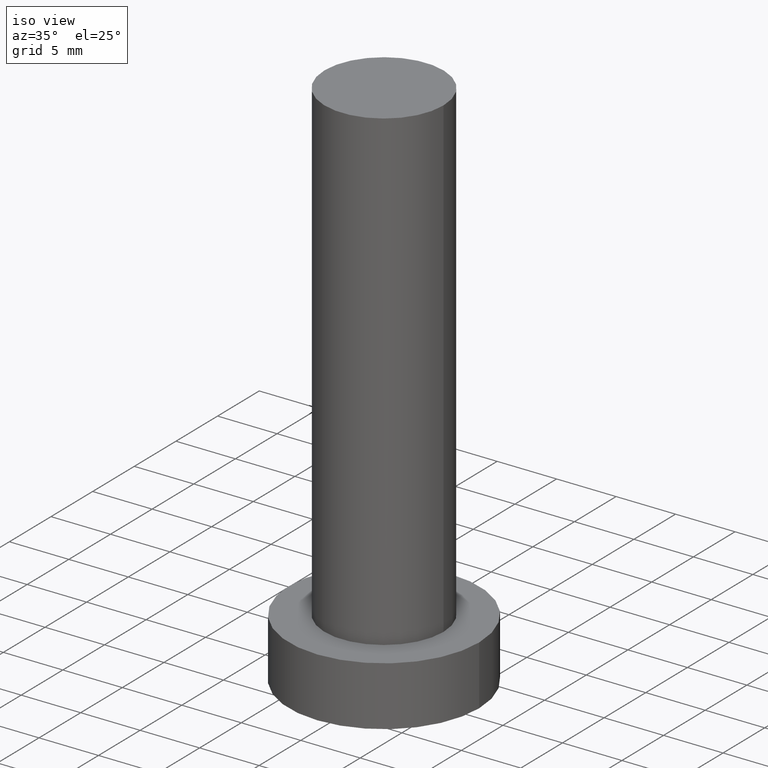
[diagram: clean part render]
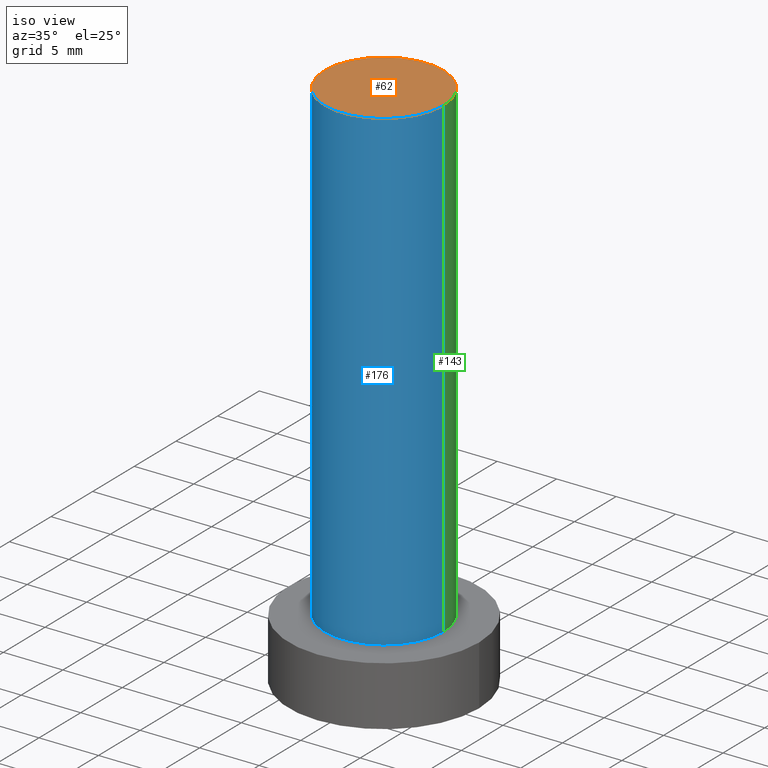
[diagram: same view with three faces highlighted in distinct colors, each labeled with its STEP entity id]
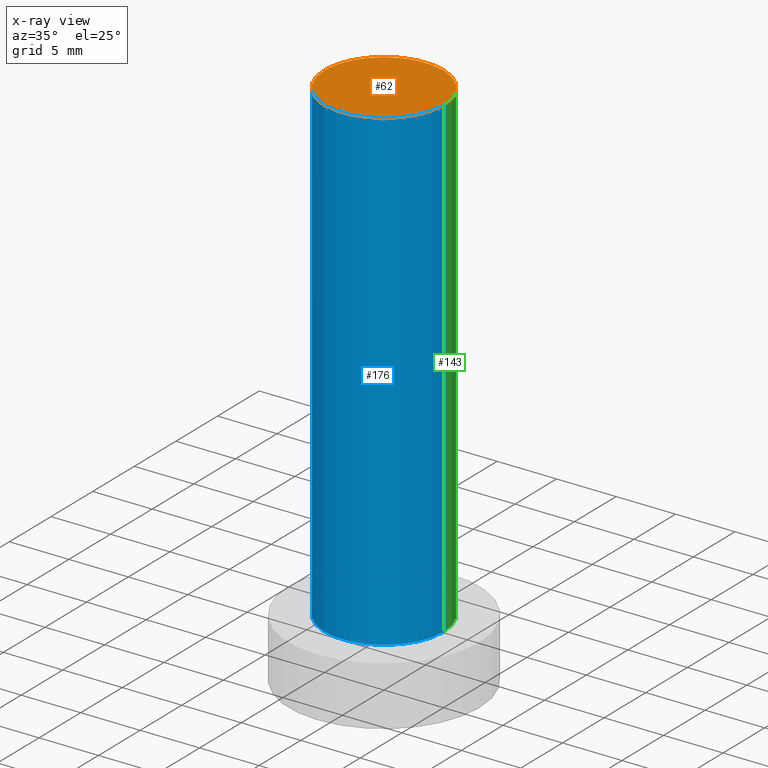
[diagram: x-ray of the same camera — body ghosted, the three highlighted faces saturated]
A machine part, iso view with three faces highlighted in distinct colors.
The next image is the same camera in x-ray (body ghosted, the three faces saturated) — at least one of them is partly hidden behind the body in this view.
Their STEP definitions:

[orange] entity #62 — the highlighted planar face has unit normal (0, 0, 1).
#12 = EDGE_LOOP ( 'NONE', ( #165, #240 ) ) ;
#18 = CARTESIAN_POINT ( 'NONE',  ( 0.000000000000000000, 0.000000000000000000, 45.00000000000000000 ) ) ;
#36 = FACE_OUTER_BOUND ( 'NONE', #12, .T. ) ;
#48 = CARTESIAN_POINT ( 'NONE',  ( -5.000000000000000888, 0.000000000000000000, 45.00000000000000000 ) ) ;
#57 = EDGE_CURVE ( 'NONE', #91, #68, #113, .T. ) ;
#62 = ADVANCED_FACE ( 'NONE', ( #36 ), #210, .T. ) ;
#68 = VERTEX_POINT ( 'NONE', #160 ) ;
#79 = DIRECTION ( 'NONE',  ( 1.000000000000000000, 0.000000000000000000, -0.000000000000000000 ) ) ;
#91 = VERTEX_POINT ( 'NONE', #48 ) ;
#113 = CIRCLE ( 'NONE', #122, 5.000000000000000888 ) ;
#119 = EDGE_CURVE ( 'NONE', #68, #91, #174, .T. ) ;
#122 = AXIS2_PLACEMENT_3D ( 'NONE', #151, #228, #226 ) ;
#151 = CARTESIAN_POINT ( 'NONE',  ( 0.000000000000000000, 0.000000000000000000, 45.00000000000000000 ) ) ;
#153 = AXIS2_PLACEMENT_3D ( 'NONE', #18, #247, #79 ) ;
#160 = CARTESIAN_POINT ( 'NONE',  ( 5.000000000000000888, 6.123233995736767268E-16, 45.00000000000000000 ) ) ;
#165 = ORIENTED_EDGE ( 'NONE', *, *, #57, .T. ) ;
#174 = CIRCLE ( 'NONE', #204, 5.000000000000000888 ) ;
#183 = DIRECTION ( 'NONE',  ( 1.000000000000000000, 0.000000000000000000, 0.000000000000000000 ) ) ;
#201 = CARTESIAN_POINT ( 'NONE',  ( 0.000000000000000000, 0.000000000000000000, 45.00000000000000000 ) ) ;
#204 = AXIS2_PLACEMENT_3D ( 'NONE', #201, #246, #183 ) ;
#210 = PLANE ( 'NONE',  #153 ) ;
#226 = DIRECTION ( 'NONE',  ( 1.000000000000000000, 0.000000000000000000, 0.000000000000000000 ) ) ;
#228 = DIRECTION ( 'NONE',  ( 0.000000000000000000, 0.000000000000000000, 1.000000000000000000 ) ) ;
#240 = ORIENTED_EDGE ( 'NONE', *, *, #119, .T. ) ;
#246 = DIRECTION ( 'NONE',  ( 0.000000000000000000, 0.000000000000000000, 1.000000000000000000 ) ) ;
#247 = DIRECTION ( 'NONE',  ( 0.000000000000000000, 0.000000000000000000, 1.000000000000000000 ) ) ;

[blue] entity #176 — the highlighted cylindrical surface (partial cylindrical patch) has radius 5 mm, axis along (-0, -0, -1).
#1 = EDGE_CURVE ( 'NONE', #68, #50, #127, .T. ) ;
#10 = CARTESIAN_POINT ( 'NONE',  ( 0.000000000000000000, 0.000000000000000000, 45.00000000000000000 ) ) ;
#27 = ORIENTED_EDGE ( 'NONE', *, *, #187, .T. ) ;
#28 = LINE ( 'NONE', #107, #99 ) ;
#33 = DIRECTION ( 'NONE',  ( -1.000000000000000000, 0.000000000000000000, 0.000000000000000000 ) ) ;
#48 = CARTESIAN_POINT ( 'NONE',  ( -5.000000000000000888, 0.000000000000000000, 45.00000000000000000 ) ) ;
#50 = VERTEX_POINT ( 'NONE', #208 ) ;
#52 = AXIS2_PLACEMENT_3D ( 'NONE', #88, #56, #243 ) ;
#54 = FACE_OUTER_BOUND ( 'NONE', #222, .T. ) ;
#56 = DIRECTION ( 'NONE',  ( 0.000000000000000000, 0.000000000000000000, 1.000000000000000000 ) ) ;
#57 = EDGE_CURVE ( 'NONE', #91, #68, #113, .T. ) ;
#64 = AXIS2_PLACEMENT_3D ( 'NONE', #10, #202, #33 ) ;
#68 = VERTEX_POINT ( 'NONE', #160 ) ;
#88 = CARTESIAN_POINT ( 'NONE',  ( 0.000000000000000000, 0.000000000000000000, 5.000000000000000000 ) ) ;
#91 = VERTEX_POINT ( 'NONE', #48 ) ;
#99 = VECTOR ( 'NONE', #112, 1000.000000000000000 ) ;
#105 = ORIENTED_EDGE ( 'NONE', *, *, #137, .T. ) ;
#107 = CARTESIAN_POINT ( 'NONE',  ( -5.000000000000000888, 0.000000000000000000, 45.00000000000000000 ) ) ;
#112 = DIRECTION ( 'NONE',  ( -0.000000000000000000, -0.000000000000000000, -1.000000000000000000 ) ) ;
#113 = CIRCLE ( 'NONE', #122, 5.000000000000000888 ) ;
#122 = AXIS2_PLACEMENT_3D ( 'NONE', #151, #228, #226 ) ;
#127 = LINE ( 'NONE', #203, #141 ) ;
#137 = EDGE_CURVE ( 'NONE', #206, #50, #230, .T. ) ;
#141 = VECTOR ( 'NONE', #184, 1000.000000000000000 ) ;
#148 = CYLINDRICAL_SURFACE ( 'NONE', #64, 5.000000000000000888 ) ;
#151 = CARTESIAN_POINT ( 'NONE',  ( 0.000000000000000000, 0.000000000000000000, 45.00000000000000000 ) ) ;
#159 = ORIENTED_EDGE ( 'NONE', *, *, #57, .F. ) ;
#160 = CARTESIAN_POINT ( 'NONE',  ( 5.000000000000000888, 6.123233995736767268E-16, 45.00000000000000000 ) ) ;
#176 = ADVANCED_FACE ( 'NONE', ( #54 ), #148, .T. ) ;
#184 = DIRECTION ( 'NONE',  ( -0.000000000000000000, -0.000000000000000000, -1.000000000000000000 ) ) ;
#185 = ORIENTED_EDGE ( 'NONE', *, *, #1, .F. ) ;
#187 = EDGE_CURVE ( 'NONE', #91, #206, #28, .T. ) ;
#202 = DIRECTION ( 'NONE',  ( -0.000000000000000000, -0.000000000000000000, -1.000000000000000000 ) ) ;
#203 = CARTESIAN_POINT ( 'NONE',  ( 5.000000000000000888, 6.123233995736767268E-16, 45.00000000000000000 ) ) ;
#206 = VERTEX_POINT ( 'NONE', #223 ) ;
#208 = CARTESIAN_POINT ( 'NONE',  ( 5.000000000000000888, 6.123233995736767268E-16, 5.000000000000000000 ) ) ;
#222 = EDGE_LOOP ( 'NONE', ( #185, #159, #27, #105 ) ) ;
#223 = CARTESIAN_POINT ( 'NONE',  ( -5.000000000000000888, 0.000000000000000000, 5.000000000000000000 ) ) ;
#226 = DIRECTION ( 'NONE',  ( 1.000000000000000000, 0.000000000000000000, 0.000000000000000000 ) ) ;
#228 = DIRECTION ( 'NONE',  ( 0.000000000000000000, 0.000000000000000000, 1.000000000000000000 ) ) ;
#230 = CIRCLE ( 'NONE', #52, 5.000000000000000888 ) ;
#243 = DIRECTION ( 'NONE',  ( 1.000000000000000000, 0.000000000000000000, 0.000000000000000000 ) ) ;

[green] entity #143 — the highlighted cylindrical surface (partial cylindrical patch) has radius 5 mm, axis along (-0, -0, -1).
#1 = EDGE_CURVE ( 'NONE', #68, #50, #127, .T. ) ;
#2 = CIRCLE ( 'NONE', #147, 5.000000000000000888 ) ;
#9 = ORIENTED_EDGE ( 'NONE', *, *, #76, .T. ) ;
#17 = CARTESIAN_POINT ( 'NONE',  ( 0.000000000000000000, 0.000000000000000000, 45.00000000000000000 ) ) ;
#28 = LINE ( 'NONE', #107, #99 ) ;
#46 = ORIENTED_EDGE ( 'NONE', *, *, #187, .F. ) ;
#48 = CARTESIAN_POINT ( 'NONE',  ( -5.000000000000000888, 0.000000000000000000, 45.00000000000000000 ) ) ;
#50 = VERTEX_POINT ( 'NONE', #208 ) ;
#68 = VERTEX_POINT ( 'NONE', #160 ) ;
#76 = EDGE_CURVE ( 'NONE', #50, #206, #2, .T. ) ;
#91 = VERTEX_POINT ( 'NONE', #48 ) ;
#92 = DIRECTION ( 'NONE',  ( 0.000000000000000000, 0.000000000000000000, 1.000000000000000000 ) ) ;
#99 = VECTOR ( 'NONE', #112, 1000.000000000000000 ) ;
#107 = CARTESIAN_POINT ( 'NONE',  ( -5.000000000000000888, 0.000000000000000000, 45.00000000000000000 ) ) ;
#108 = ORIENTED_EDGE ( 'NONE', *, *, #119, .F. ) ;
#112 = DIRECTION ( 'NONE',  ( -0.000000000000000000, -0.000000000000000000, -1.000000000000000000 ) ) ;
#119 = EDGE_CURVE ( 'NONE', #68, #91, #174, .T. ) ;
#127 = LINE ( 'NONE', #203, #141 ) ;
#131 = DIRECTION ( 'NONE',  ( -1.000000000000000000, 0.000000000000000000, 0.000000000000000000 ) ) ;
#141 = VECTOR ( 'NONE', #184, 1000.000000000000000 ) ;
#143 = ADVANCED_FACE ( 'NONE', ( #225 ), #144, .T. ) ;
#144 = CYLINDRICAL_SURFACE ( 'NONE', #175, 5.000000000000000888 ) ;
#145 = EDGE_LOOP ( 'NONE', ( #108, #181, #9, #46 ) ) ;
#147 = AXIS2_PLACEMENT_3D ( 'NONE', #241, #92, #150 ) ;
#150 = DIRECTION ( 'NONE',  ( 1.000000000000000000, 0.000000000000000000, 0.000000000000000000 ) ) ;
#160 = CARTESIAN_POINT ( 'NONE',  ( 5.000000000000000888, 6.123233995736767268E-16, 45.00000000000000000 ) ) ;
#174 = CIRCLE ( 'NONE', #204, 5.000000000000000888 ) ;
#175 = AXIS2_PLACEMENT_3D ( 'NONE', #17, #245, #131 ) ;
#181 = ORIENTED_EDGE ( 'NONE', *, *, #1, .T. ) ;
#183 = DIRECTION ( 'NONE',  ( 1.000000000000000000, 0.000000000000000000, 0.000000000000000000 ) ) ;
#184 = DIRECTION ( 'NONE',  ( -0.000000000000000000, -0.000000000000000000, -1.000000000000000000 ) ) ;
#187 = EDGE_CURVE ( 'NONE', #91, #206, #28, .T. ) ;
#201 = CARTESIAN_POINT ( 'NONE',  ( 0.000000000000000000, 0.000000000000000000, 45.00000000000000000 ) ) ;
#203 = CARTESIAN_POINT ( 'NONE',  ( 5.000000000000000888, 6.123233995736767268E-16, 45.00000000000000000 ) ) ;
#204 = AXIS2_PLACEMENT_3D ( 'NONE', #201, #246, #183 ) ;
#206 = VERTEX_POINT ( 'NONE', #223 ) ;
#208 = CARTESIAN_POINT ( 'NONE',  ( 5.000000000000000888, 6.123233995736767268E-16, 5.000000000000000000 ) ) ;
#223 = CARTESIAN_POINT ( 'NONE',  ( -5.000000000000000888, 0.000000000000000000, 5.000000000000000000 ) ) ;
#225 = FACE_OUTER_BOUND ( 'NONE', #145, .T. ) ;
#241 = CARTESIAN_POINT ( 'NONE',  ( 0.000000000000000000, 0.000000000000000000, 5.000000000000000000 ) ) ;
#245 = DIRECTION ( 'NONE',  ( -0.000000000000000000, -0.000000000000000000, -1.000000000000000000 ) ) ;
#246 = DIRECTION ( 'NONE',  ( 0.000000000000000000, 0.000000000000000000, 1.000000000000000000 ) ) ;